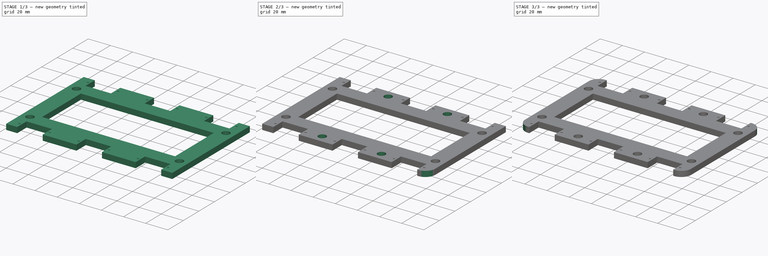
[diagram: build sequence overview — one tinted view per stage of 3, left to right]
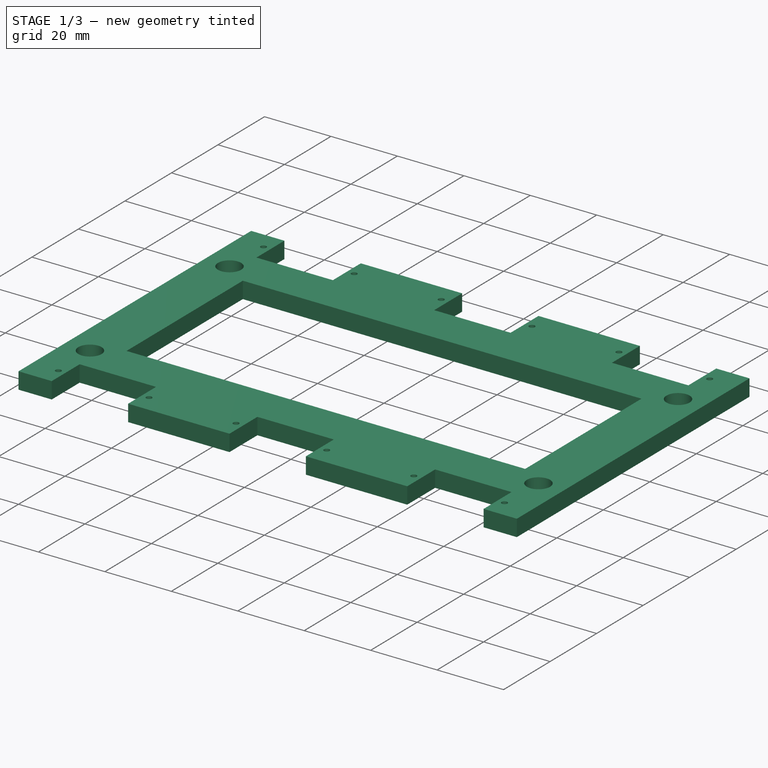
[diagram: stage 1 of 3 — iso view after this stage's code; geometry added in this stage tinted green]
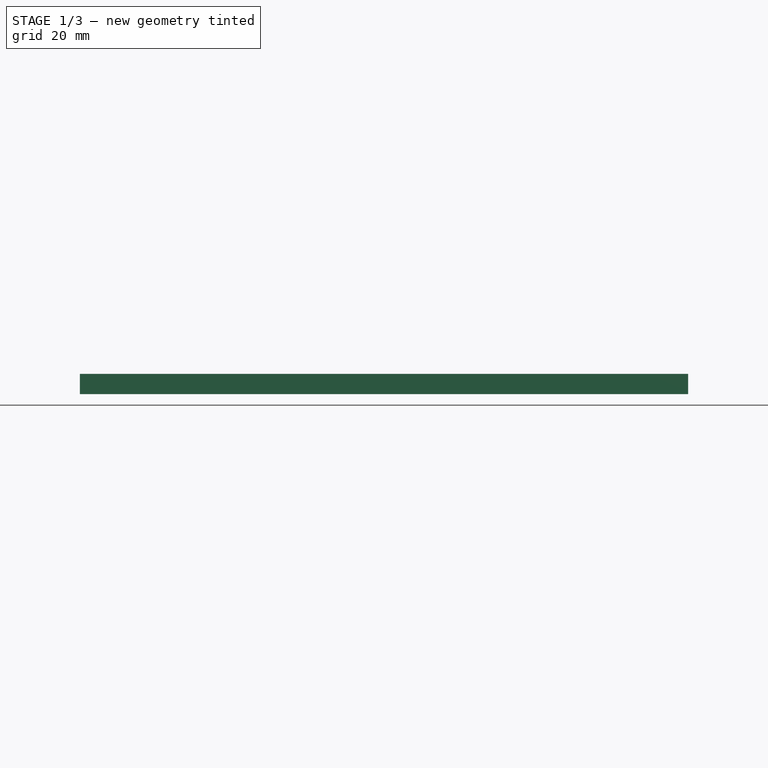
[diagram: stage 1 of 3 — front view after this stage's code; geometry added in this stage tinted green]
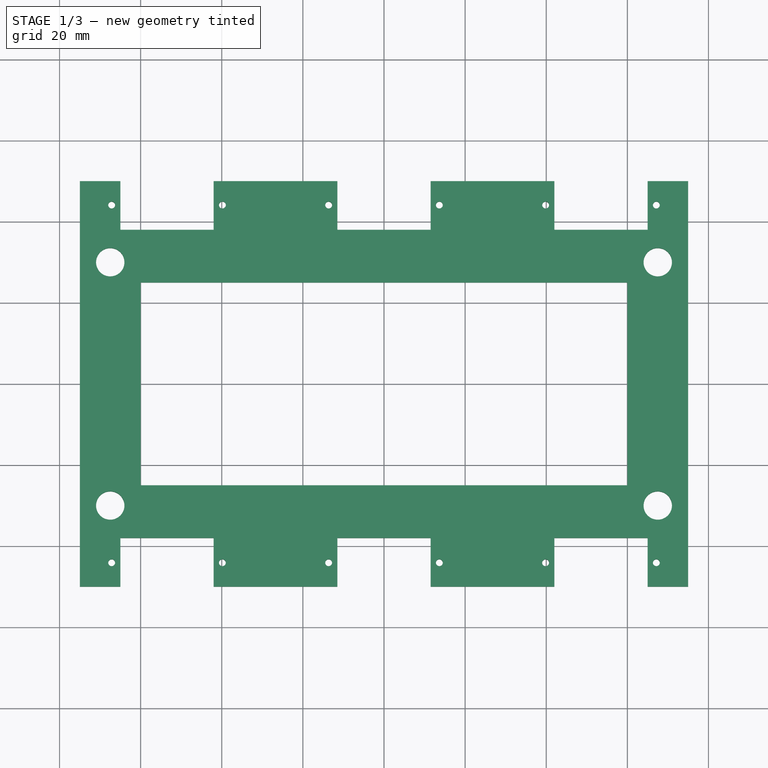
[diagram: stage 1 of 3 — top view after this stage's code; geometry added in this stage tinted green]
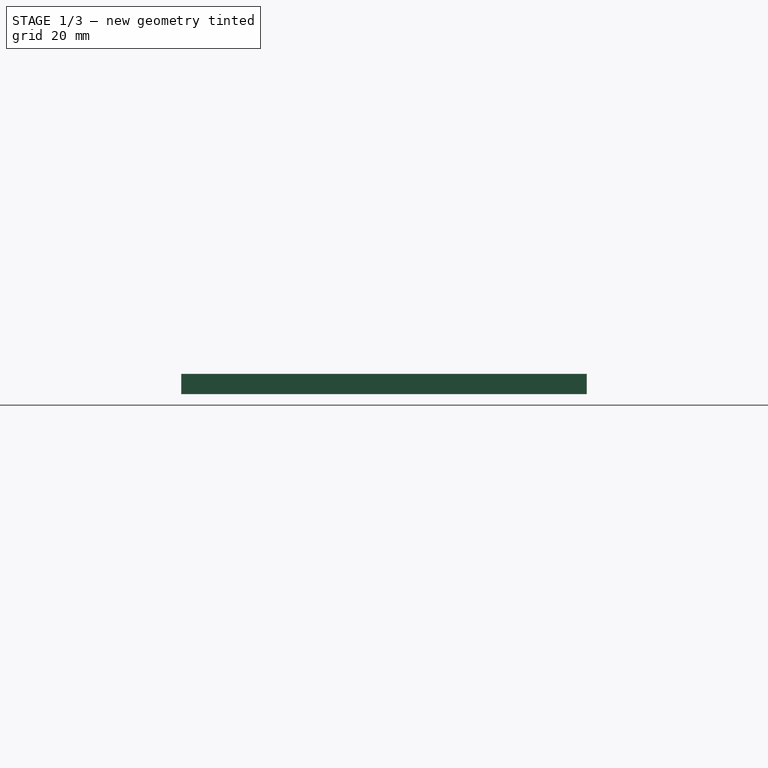
[diagram: stage 1 of 3 — right view after this stage's code; geometry added in this stage tinted green]
FCSTD DOCUMENT  (FreeCAD 0.21R33668 +26 (Git))
Label: base
License: All rights reserved
LicenseURL: https://en.wikipedia.org/wiki/All_rights_reserved
objects: Sketcher::SketchObject×4, PartDesign::Fillet×4, PartDesign::Pocket×3, PartDesign::Pad×1, PartDesign::Body×1
note: 21 computed .brp shape members not serialized (recipe doc carries the construction recipe); baked Part::Feature solids carry a one-line shape summary decoded from their .brp

FEATURE [Sketcher::SketchObject] Sketch
  FullyConstrained = true
  MapMode = 5
  Support = -> [XY_Plane]
  sketch-geometry (4):
    g0: LineSegment StartX=-75 StartY=50 StartZ=0 EndX=75 EndY=50 EndZ=0
    g1: LineSegment StartX=75 StartY=50 StartZ=0 EndX=75 EndY=-50 EndZ=0
    g2: LineSegment StartX=75 StartY=-50 StartZ=0 EndX=-75 EndY=-50 EndZ=0
    g3: LineSegment StartX=-75 StartY=-50 StartZ=0 EndX=-75 EndY=50 EndZ=0
  constraints (12):
    c: Coincident(g0,g1)
    c: Coincident(g1,g2)
    c: Coincident(g2,g3)
    c: Coincident(g3,g0)
    c: Horizontal(g0)
    c: Horizontal(g2)
    c: Vertical(g1)
    c: Vertical(g3)
    c: DistanceY(g3,g3) = 100
    c: DistanceY(g-1,g0) = 50
    c: DistanceX(g0,g0) = 150
    c: DistanceX(g0,g-1) = 75
FEATURE [PartDesign::Pad] Pad
  Direction = (0,0,1)
  Length = 5
  Length2 = 10
  Profile = -> Sketch
  ReferenceAxis = -> Sketch [N_Axis]
  Type = 0
FEATURE [Sketcher::SketchObject] Sketch001
  ExternalGeometry = -> [Pad]
  FullyConstrained = true
  MapMode = 5
  Placement = pos=(0,0,5) rot=(0,0,1;0rad)
  Support = -> [Pad]
  sketch-geometry (28):
    g0: LineSegment StartX=-65 StartY=50 StartZ=0 EndX=-42 EndY=50 EndZ=0
    g1: LineSegment StartX=-42 StartY=50 StartZ=0 EndX=-42 EndY=38 EndZ=0
    g2: LineSegment StartX=-42 StartY=38 StartZ=0 EndX=-65 EndY=38 EndZ=0
    g3: LineSegment StartX=-65 StartY=38 StartZ=0 EndX=-65 EndY=50 EndZ=0
    g4: LineSegment StartX=-65 StartY=-50 StartZ=0 EndX=-42 EndY=-50 EndZ=0
    g5: LineSegment StartX=-42 StartY=-50 StartZ=0 EndX=-42 EndY=-38 EndZ=0
    g6: LineSegment StartX=-42 StartY=-38 StartZ=0 EndX=-65 EndY=-38 EndZ=0
    g7: LineSegment StartX=-65 StartY=-38 StartZ=0 EndX=-65 EndY=-50 EndZ=0
    g8: LineSegment StartX=-11.5 StartY=38 StartZ=0 EndX=11.5 EndY=38 EndZ=0
    g9: LineSegment StartX=11.5 StartY=38 StartZ=0 EndX=11.5 EndY=50 EndZ=0
    g10: LineSegment StartX=11.5 StartY=50 StartZ=0 EndX=-11.5 EndY=50 EndZ=0
    g11: LineSegment StartX=-11.5 StartY=50 StartZ=0 EndX=-11.5 EndY=38 EndZ=0
    g12: LineSegment StartX=-11.5 StartY=-38 StartZ=0 EndX=11.5 EndY=-38 EndZ=0
    g13: LineSegment StartX=11.5 StartY=-38 StartZ=0 EndX=11.5 EndY=-50 EndZ=0
    g14: LineSegment StartX=11.5 StartY=-50 StartZ=0 EndX=-11.5 EndY=-50 EndZ=0
    g15: LineSegment StartX=-11.5 StartY=-50 StartZ=0 EndX=-11.5 EndY=-38 EndZ=0
    g16: LineSegment StartX=42 StartY=38 StartZ=0 EndX=65 EndY=38 EndZ=0
    g17: LineSegment StartX=65 StartY=38 StartZ=0 EndX=65 EndY=50 EndZ=0
    g18: LineSegment StartX=65 StartY=50 StartZ=0 EndX=42 EndY=50 EndZ=0
    g19: LineSegment StartX=42 StartY=50 StartZ=0 EndX=42 EndY=38 EndZ=0
    g20: LineSegment StartX=42 StartY=-38 StartZ=0 EndX=65 EndY=-38 EndZ=0
    g21: LineSegment StartX=65 StartY=-38 StartZ=0 EndX=65 EndY=-50 EndZ=0
    g22: LineSegment StartX=65 StartY=-50 StartZ=0 EndX=42 EndY=-50 EndZ=0
    g23: LineSegment StartX=42 StartY=-50 StartZ=0 EndX=42 EndY=-38 EndZ=0
    g24: Circle CenterX=-39.8 CenterY=-43.9 CenterZ=0 NormalX=0 NormalY=0 NormalZ=1 AngleXU=0 Radius=0.8
    g25: Circle CenterX=-67.2 CenterY=-43.9 CenterZ=0 NormalX=0 NormalY=0 NormalZ=1 AngleXU=0 Radius=0.8
    g26: LineSegment StartX=-67.2 StartY=-43.9 StartZ=0 EndX=-66.4 EndY=-43.9 EndZ=0
    g27: LineSegment StartX=-39.8 StartY=-43.9 StartZ=0 EndX=-40.6 EndY=-43.9 EndZ=0
  constraints (86):
    c: Coincident(g0,g1)
    c: Coincident(g1,g2)
    c: Coincident(g2,g3)
    c: Coincident(g3,g0)
    c: Horizontal(g0)
    c: Horizontal(g2)
    c: Vertical(g1)
    c: Vertical(g3)
    c: PointOnObject(g0,g-6)
    c: Coincident(g4,g5)
    c: Coincident(g5,g6)
    c: Coincident(g6,g7)
    c: Coincident(g7,g4)
    c: Horizontal(g4)
    c: Horizontal(g6)
    c: Vertical(g5)
    c: Vertical(g7)
    c: PointOnObject(g4,g-4)
    c: DistanceX(g2,g2) = 23
    c: DistanceY(g3,g3) = 12
    c: DistanceY(g7,g7) = 12
    c: DistanceX(g6,g6) = 23
    c: DistanceX(g-6,g-6) = 150
    c: DistanceX(g-6,g-6) = 150
    c: DistanceX(g-6,g2) = 10
    c: DistanceX(g-5,g6) = 10
    c: Coincident(g8,g9)
    c: Coincident(g9,g10)
    c: Coincident(g10,g11)
    c: Coincident(g11,g8)
    c: Horizontal(g8)
    c: Horizontal(g10)
    c: Vertical(g9)
    c: Vertical(g11)
    c: PointOnObject(g9,g-6)
    c: Coincident(g12,g13)
    c: Coincident(g13,g14)
    c: Coincident(g14,g15)
    c: Coincident(g15,g12)
    c: Horizontal(g12)
    c: Horizontal(g14)
    c: Vertical(g13)
    c: Vertical(g15)
    c: PointOnObject(g13,g-4)
    c: Coincident(g16,g17)
    c: Coincident(g17,g18)
    c: Coincident(g18,g19)
    c: Coincident(g19,g16)
    c: Horizontal(g16)
    c: Horizontal(g18)
    c: Vertical(g17)
    c: Vertical(g19)
    c: PointOnObject(g17,g-6)
    c: Coincident(g20,g21)
    c: Coincident(g21,g22)
    c: Coincident(g22,g23)
    c: Coincident(g23,g20)
    c: Horizontal(g20)
    c: Horizontal(g22)
    c: Vertical(g21)
    c: Vertical(g23)
    c: PointOnObject(g21,g-4)
    c: DistanceX(g12,g12) = 23
    c: DistanceX(g20,g20) = 23
    c: DistanceX(g16,g16) = 23
    c: DistanceX(g16,g-6) = 10
    c: DistanceX(g21,g-4) = 10
    c: DistanceY(g11,g11) = 12
    c: DistanceY(g19,g19) = 12
    c: DistanceY(g23,g23) = 12
    c: DistanceY(g15,g15) = 12
    c: DistanceX(g4,g24) = 2.2
    c: DistanceX(g25,g4) = 2.2
    c: Coincident(g26,g25)
    c: PointOnObject(g26,g25)
    c: Horizontal(g26)
    c: DistanceX(g26,g26) = 0.8
    c: Coincident(g27,g24)
    c: PointOnObject(g27,g24)
    c: Horizontal(g27)
    c: DistanceX(g27,g27) = 0.8
    c: DistanceY(g-5,g25) = 6.1
    c: DistanceY(g4,g24) = 6.1
    c: DistanceX(g10,g-1) = 11.5
    c: DistanceX(g8,g8) = 23
    c: DistanceX(g12,g-1) = 11.5
FEATURE [PartDesign::Pocket] Pocket
  BaseFeature = -> Pad
  Direction = (0,0,-1)
  Length = 16
  Length2 = 5
  Profile = -> Sketch001
  ReferenceAxis = -> Sketch001 [N_Axis]
  Type = 0
FEATURE [Sketcher::SketchObject] Sketch002
  ExternalGeometry = -> [Pocket]
  FullyConstrained = false
  MapMode = 5
  Placement = pos=(0,0,5) rot=(0,0,1;0rad)
  Support = -> [Pocket]
  sketch-geometry (20):
    g0: LineSegment StartX=-60 StartY=25 StartZ=0 EndX=60 EndY=25 EndZ=0
    g1: LineSegment StartX=60 StartY=25 StartZ=0 EndX=60 EndY=-25 EndZ=0
    g2: LineSegment StartX=60 StartY=-25 StartZ=0 EndX=-60 EndY=-25 EndZ=0
    g3: LineSegment StartX=-60 StartY=-25 StartZ=0 EndX=-60 EndY=25 EndZ=0
    g4: Circle CenterX=-39.85 CenterY=-44.1 CenterZ=0 NormalX=0 NormalY=0 NormalZ=1 AngleXU=0 Radius=0.85
    g5: Circle CenterX=-67.15 CenterY=44.1 CenterZ=0 NormalX=0 NormalY=0 NormalZ=1 AngleXU=0 Radius=0.85
    g6: Circle CenterX=-39.85 CenterY=44.1 CenterZ=0 NormalX=0 NormalY=0 NormalZ=1 AngleXU=0 Radius=0.85
    g7: Circle CenterX=-13.65 CenterY=44.1 CenterZ=0 NormalX=0 NormalY=0 NormalZ=1 AngleXU=0 Radius=0.85
    g8: Circle CenterX=13.65 CenterY=44.1 CenterZ=0 NormalX=0 NormalY=0 NormalZ=1 AngleXU=0 Radius=0.85
    g9: Circle CenterX=39.85 CenterY=44.1 CenterZ=0 NormalX=0 NormalY=0 NormalZ=1 AngleXU=0 Radius=0.85
    g10: Circle CenterX=67.15 CenterY=44.1 CenterZ=0 NormalX=0 NormalY=0 NormalZ=1 AngleXU=0 Radius=0.85
    g11: Circle CenterX=39.85 CenterY=-44.1 CenterZ=0 NormalX=0 NormalY=0 NormalZ=1 AngleXU=0 Radius=0.85
    g12: Circle CenterX=67.15 CenterY=-44.1 CenterZ=0 NormalX=0 NormalY=0 NormalZ=1 AngleXU=0 Radius=0.85
    g13: Circle CenterX=13.65 CenterY=-44.1 CenterZ=0 NormalX=0 NormalY=0 NormalZ=1 AngleXU=0 Radius=0.85
    g14: Circle CenterX=-13.65 CenterY=-44.1 CenterZ=0 NormalX=0 NormalY=0 NormalZ=1 AngleXU=0 Radius=0.85
    g15: Circle CenterX=-67.15 CenterY=-44.1 CenterZ=0 NormalX=0 NormalY=0 NormalZ=1 AngleXU=0 Radius=0.85
    g16: Circle CenterX=67.5 CenterY=30 CenterZ=0 NormalX=0 NormalY=0 NormalZ=1 AngleXU=0 Radius=3.5
    g17: Circle CenterX=67.5 CenterY=-30 CenterZ=0 NormalX=0 NormalY=0 NormalZ=1 AngleXU=0 Radius=3.5
    g18: Circle CenterX=-67.5 CenterY=30 CenterZ=0 NormalX=0 NormalY=0 NormalZ=1 AngleXU=0 Radius=3.5
    g19: Circle CenterX=-67.5 CenterY=-30 CenterZ=0 NormalX=0 NormalY=0 NormalZ=1 AngleXU=0 Radius=3.5
  constraints (44):
    c: Coincident(g0,g1)
    c: Coincident(g1,g2)
    c: Coincident(g2,g3)
    c: Coincident(g3,g0)
    c: Horizontal(g0)
    c: Horizontal(g2)
    c: Vertical(g1)
    c: Vertical(g3)
    c: DistanceX(g0,g0) = 120
    c: DistanceX(g0,g-1) = 60
    c: DistanceY(g3,g3) = 50
    c: DistanceY(g2,g-1) = 25
    c: DistanceX(g-18,g4) = 2.15
    c: DistanceY(g-18,g4) = 5.9
    c: DistanceX(g14,g-20) = 2.15
    c: DistanceX(g-21,g13) = 2.15
    c: DistanceX(g11,g-22) = 2.15
    c: DistanceX(g-23,g12) = 2.15
    c: DistanceX(g-24,g10) = 2.15
    c: DistanceX(g9,g-25) = 2.15
    c: DistanceX(g-26,g8) = 2.15
    c: DistanceX(g7,g-27) = 2.15
    c: DistanceX(g-28,g6) = 2.15
    c: DistanceX(g5,g-29) = 2.15
    c: DistanceY(g6,g-28) = 5.9
    c: DistanceY(g7,g-27) = 5.9
    c: DistanceY(g8,g-26) = 5.9
    c: DistanceY(g9,g-25) = 5.9
    c: DistanceY(g10,g-24) = 5.9
    c: DistanceY(g-23,g12) = 5.9
    c: DistanceY(g-22,g11) = 5.9
    c: DistanceY(g-21,g13) = 5.9
    c: DistanceY(g-19,g15) = 5.9
    c: DistanceY(g-20,g14) = 5.9
    c: DistanceX(g15,g-19) = 2.15
    c: DistanceY(g0,g16) = 5
    c: DistanceY(g17,g1) = 5
    c: DistanceX(g1,g17) = 7.5
    c: DistanceX(g0,g16) = 7.5
    c: DistanceX(g18,g0) = 7.5
    c: DistanceY(g0,g18) = 5
    c: DistanceX(g19,g2) = 7.5
    c: DistanceY(g19,g2) = 5
    c: DistanceY(g5,g-17) = 5.9
FEATURE [Sketcher::SketchObject] Sketch003
  FullyConstrained = false
  MapMode = 5
  Placement = pos=(0,0,7) rot=(0,0,1;0rad)
  sketch-geometry (4):
    g0: Circle CenterX=-26 CenterY=-42.5 CenterZ=0 NormalX=0 NormalY=0 NormalZ=1 AngleXU=0 Radius=3.5
    g1: Circle CenterX=27.5 CenterY=-42.5 CenterZ=0 NormalX=0 NormalY=0 NormalZ=1 AngleXU=0 Radius=3.5
    g2: Circle CenterX=-26 CenterY=42.5 CenterZ=0 NormalX=0 NormalY=0 NormalZ=1 AngleXU=0 Radius=3.5
    g3: Circle CenterX=27.5 CenterY=42.5 CenterZ=0 NormalX=0 NormalY=0 NormalZ=1 AngleXU=0 Radius=3.5
FEATURE [PartDesign::Pocket] Pocket001
  BaseFeature = -> Pocket
  Direction = (0,0,-1)
  Length = 10
  Length2 = 5
  Profile = -> Sketch002
  ReferenceAxis = -> Sketch002 [N_Axis]
  Type = 0
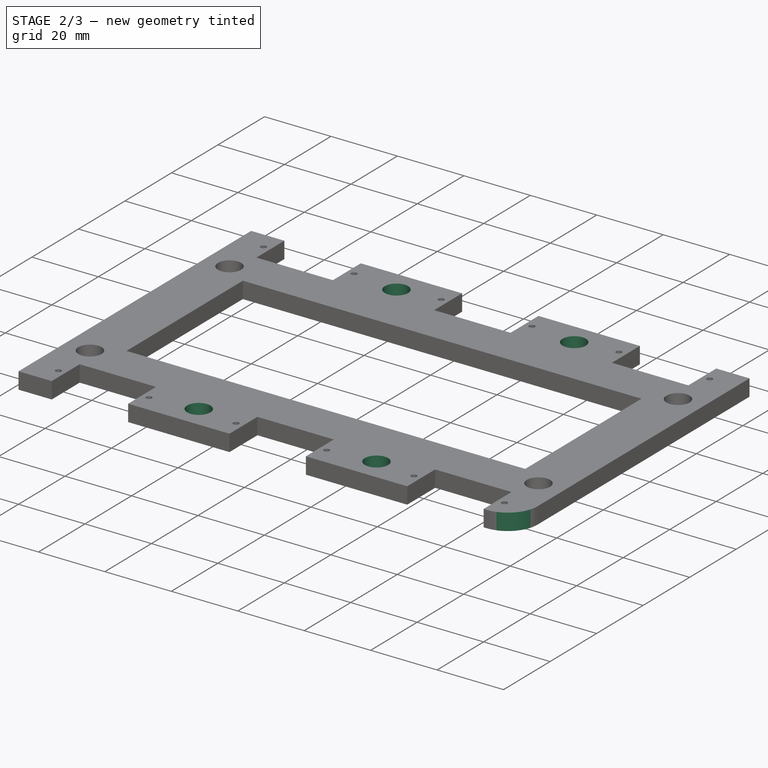
[diagram: stage 2 of 3 — iso view after this stage's code; geometry added in this stage tinted green]
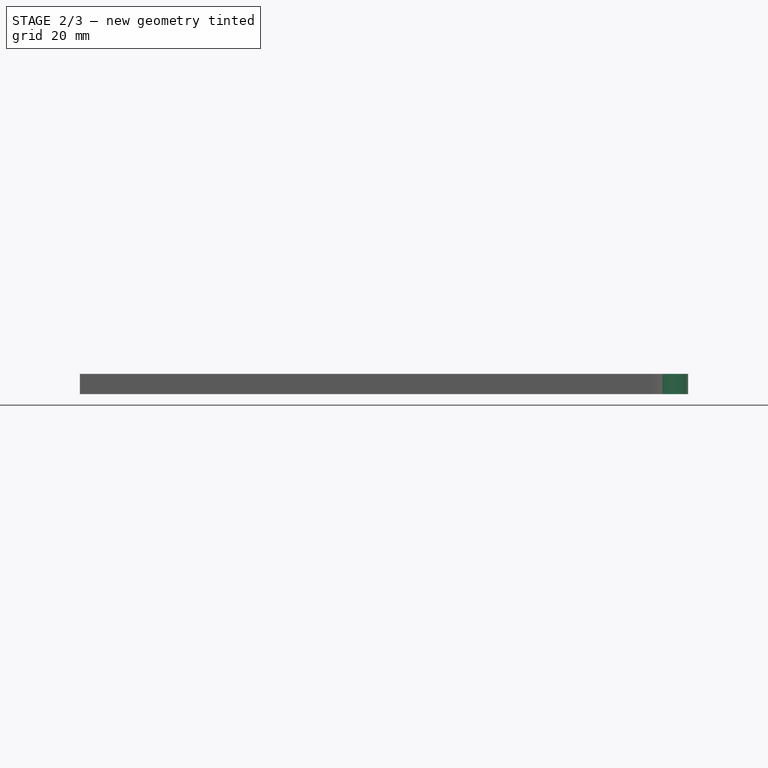
[diagram: stage 2 of 3 — front view after this stage's code; geometry added in this stage tinted green]
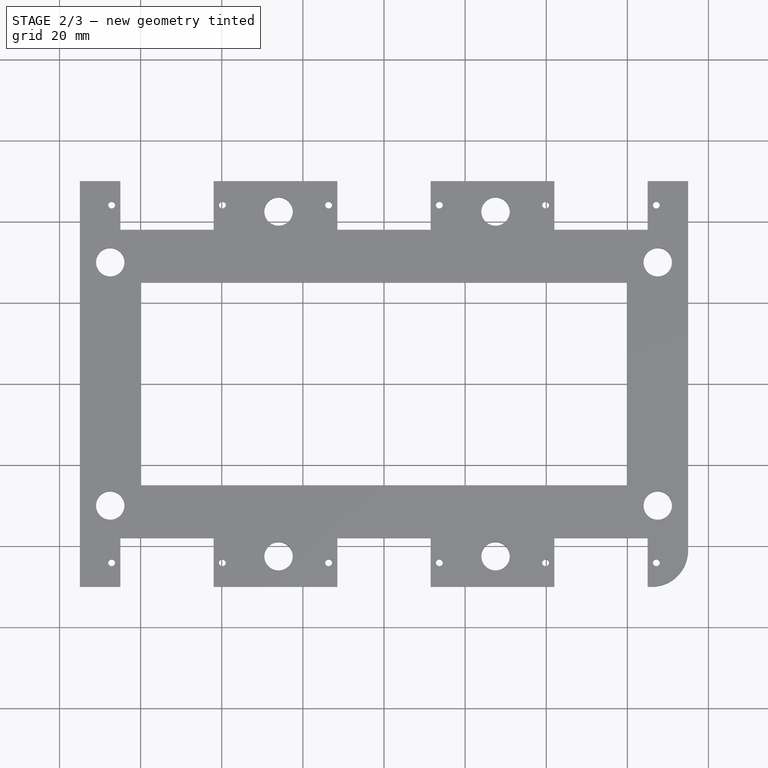
[diagram: stage 2 of 3 — top view after this stage's code; geometry added in this stage tinted green]
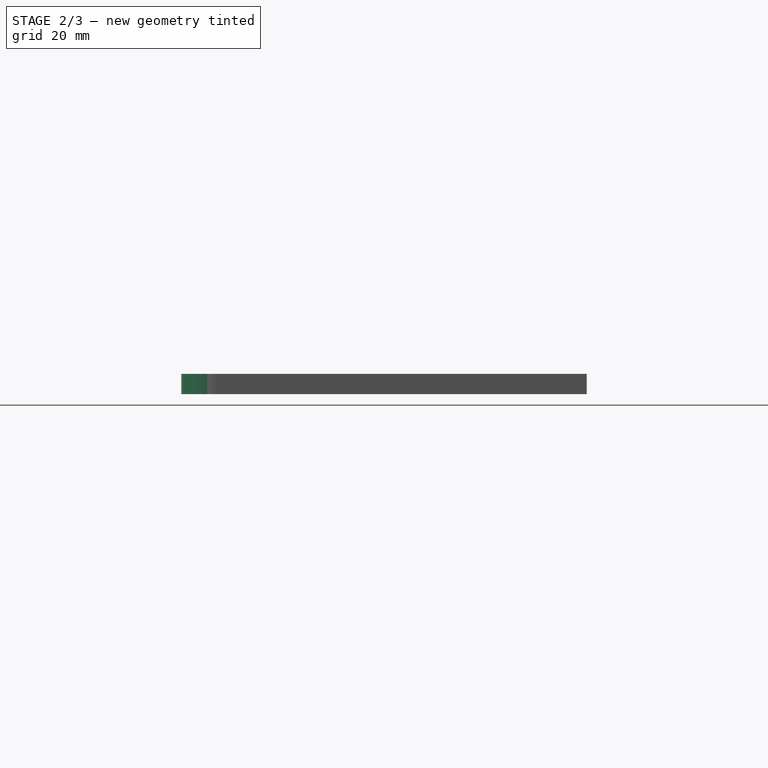
[diagram: stage 2 of 3 — right view after this stage's code; geometry added in this stage tinted green]
FEATURE [PartDesign::Pocket] Pocket002
  BaseFeature = -> Pocket001
  Direction = (0,0,-1)
  Length = 10
  Length2 = 5
  Profile = -> Sketch003
  ReferenceAxis = -> Sketch003 [N_Axis]
  Type = 0
FEATURE [PartDesign::Fillet] Fillet
  Base = -> Pocket002 [Edge132]
  BaseFeature = -> Pocket002
  Radius = 9
  SupportTransform = false
  UseAllEdges = false
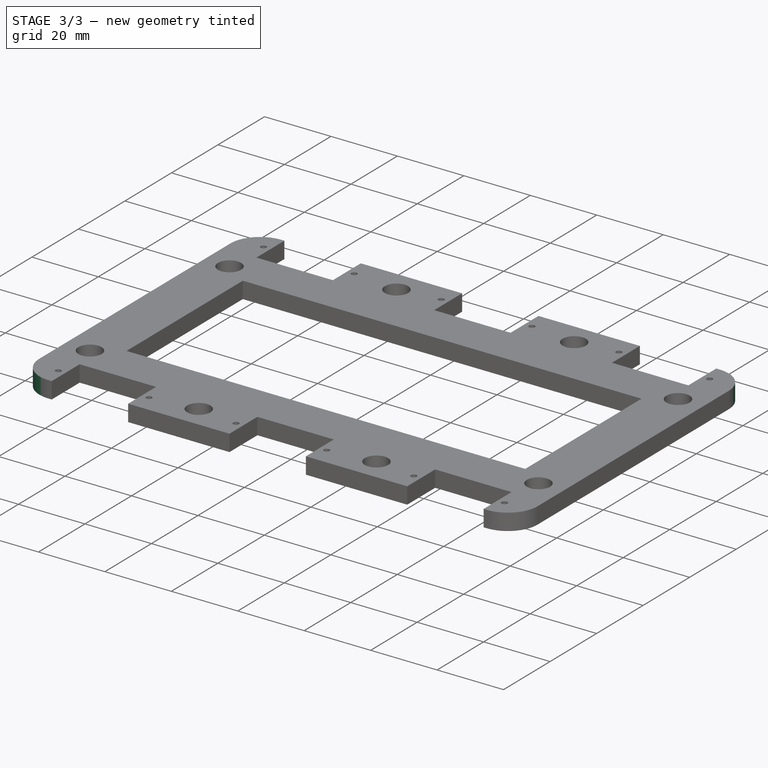
[diagram: stage 3 of 3 — iso view after this stage's code; geometry added in this stage tinted green]
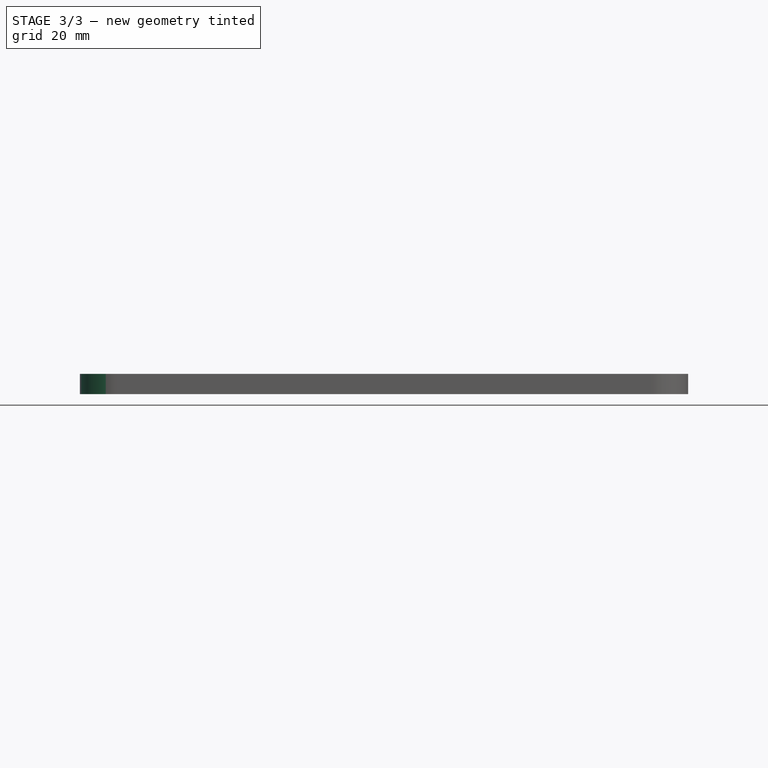
[diagram: stage 3 of 3 — front view after this stage's code; geometry added in this stage tinted green]
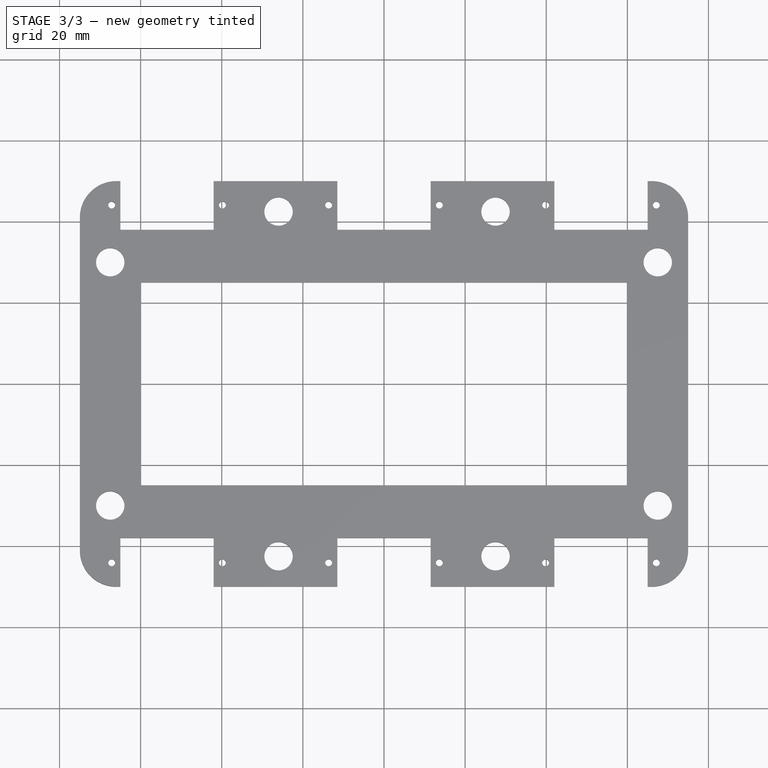
[diagram: stage 3 of 3 — top view after this stage's code; geometry added in this stage tinted green]
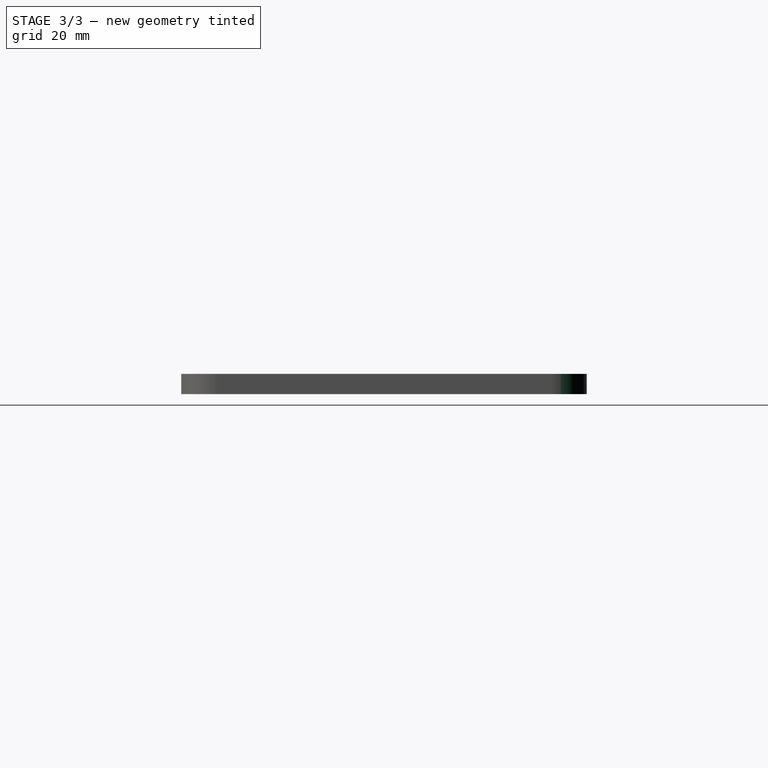
[diagram: stage 3 of 3 — right view after this stage's code; geometry added in this stage tinted green]
FEATURE [PartDesign::Fillet] Fillet001
  Base = -> Fillet [Edge55]
  BaseFeature = -> Fillet
  Radius = 9
  SupportTransform = false
  UseAllEdges = false
FEATURE [PartDesign::Fillet] Fillet002
  Base = -> Fillet001 [Edge111]
  BaseFeature = -> Fillet001
  Radius = 9
  SupportTransform = false
  UseAllEdges = false
FEATURE [PartDesign::Fillet] Fillet003
  Base = -> Fillet002 [Edge63]
  BaseFeature = -> Fillet002
  Radius = 9
  SupportTransform = false
  UseAllEdges = false
FEATURE [PartDesign::Body] Body
  Group = -> [Sketch,Pad,Sketch001,Pocket,Sketch002,Sketch003,Pocket001,Pocket002,Fillet,Fillet001,Fillet002,Fillet003]
  Origin = -> Origin
  Tip = -> Fillet003
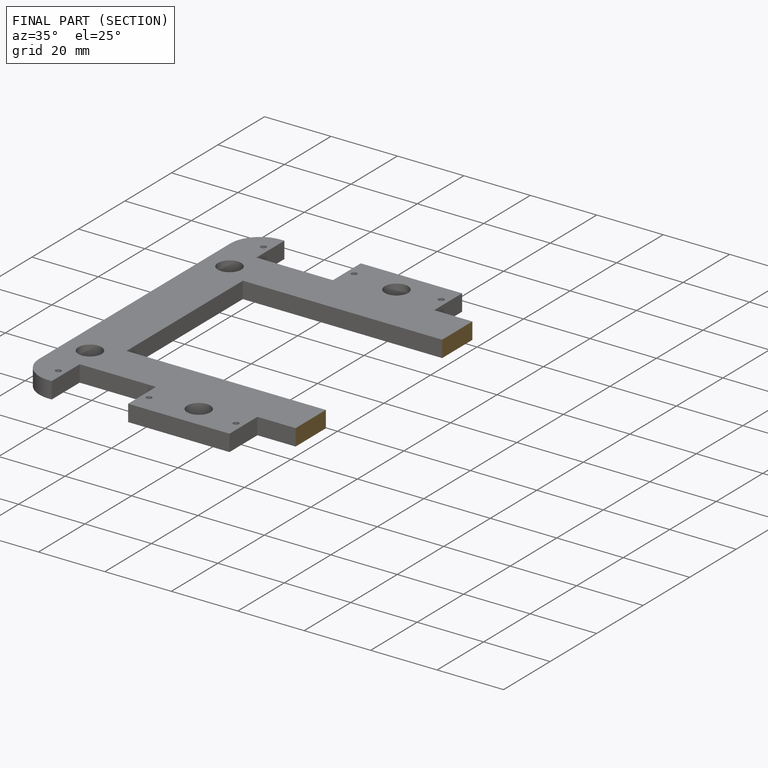
[diagram: finished part — half-section view (interior)]
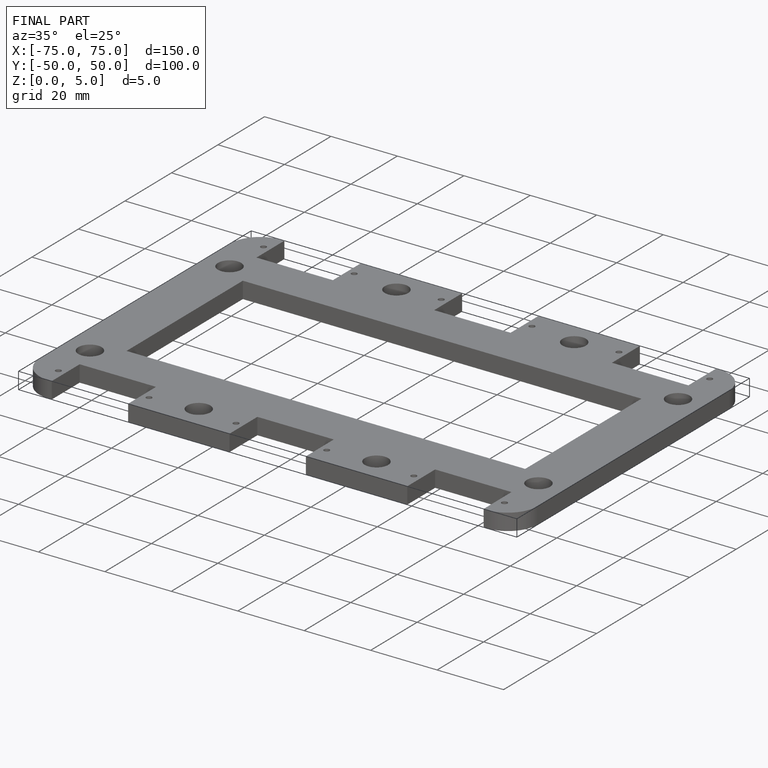
[diagram: finished part — iso view with bounding-box wireframe]
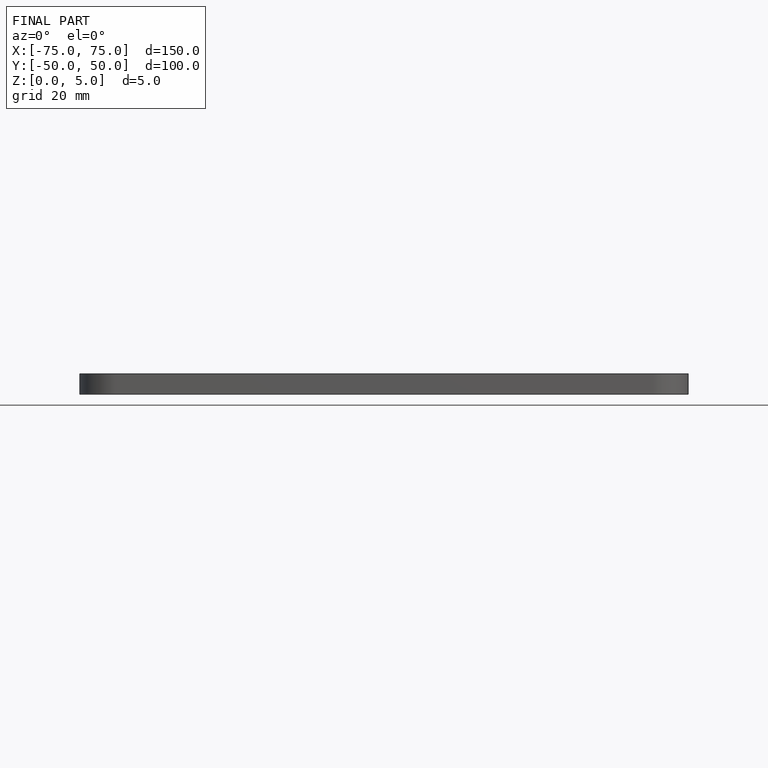
[diagram: finished part — front view with bounding-box wireframe]
